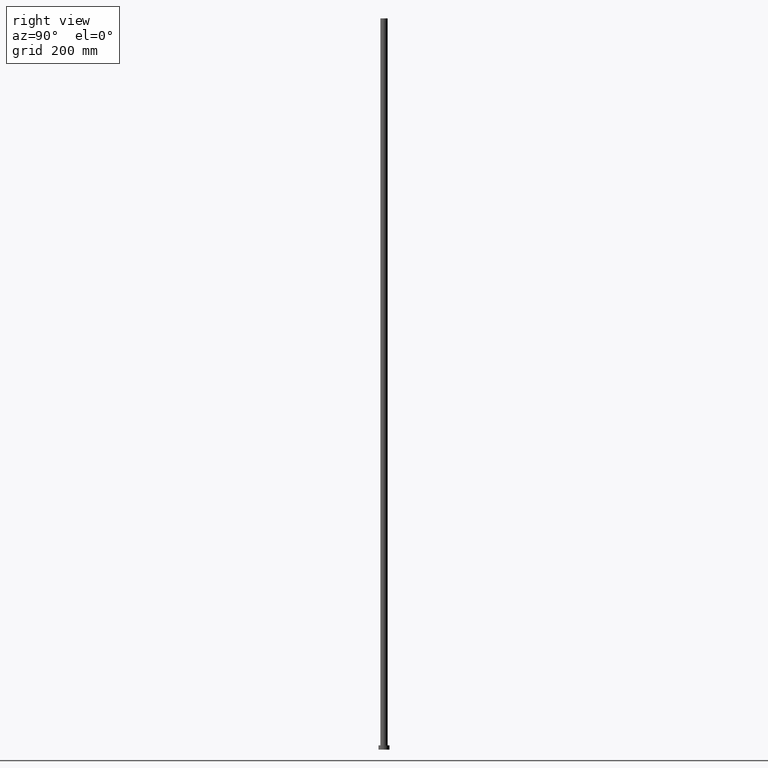
[diagram: clean part render]
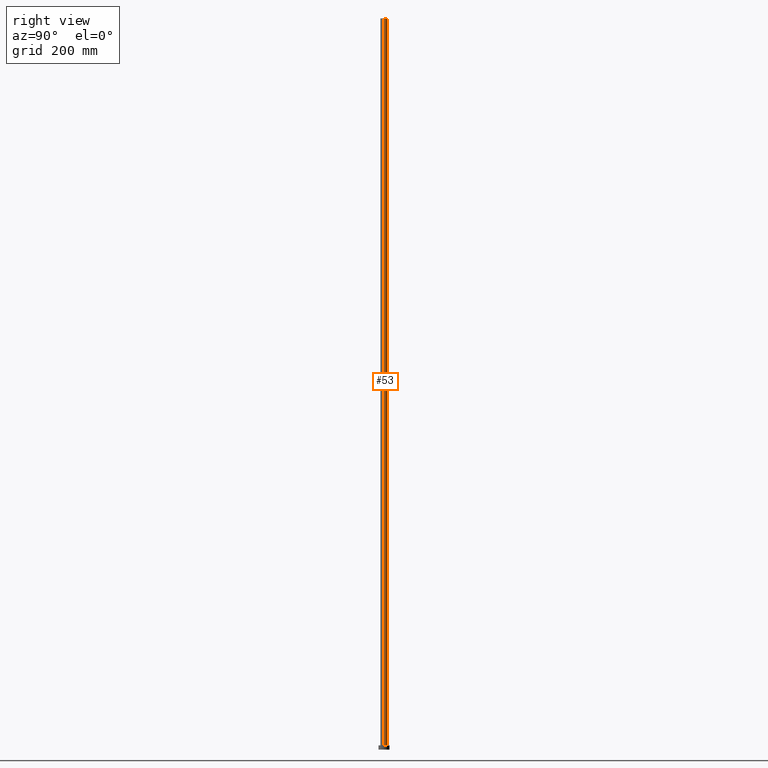
[diagram: same view with one face highlighted and labeled with its STEP entity id]
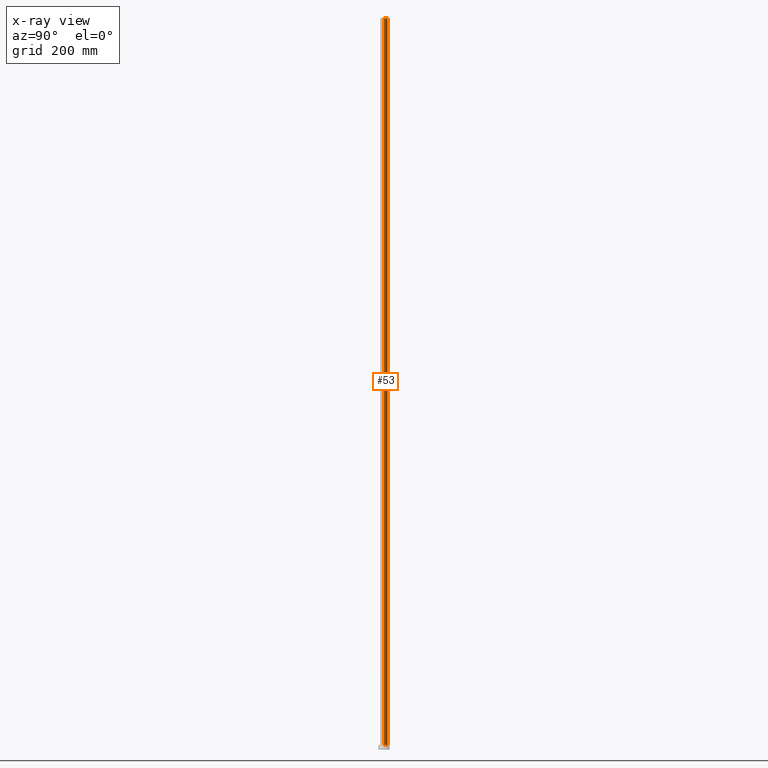
[diagram: x-ray of the same camera — body ghosted, the highlighted face saturated]
A machine part, right view. The second image highlights one B-rep face of the part: STEP entity #53.
The next image is the same camera in x-ray: the body ghosted, the highlighted face saturated — about 0% of this face is hidden behind the body in this view.
In plain terms, the highlighted cylindrical surface (edge-blend (fillet) strip) has radius 6 mm, axis along (-0, -0, -1).
Its self-contained STEP definition (entity closure, byte-faithful):
#1 = DIRECTION ( 'NONE',  ( 1.000000000000000000, 0.000000000000000000, 0.000000000000000000 ) ) ;
#2 = CIRCLE ( 'NONE', #51, 6.000000000000000888 ) ;
#3 = LINE ( 'NONE', #255, #222 ) ;
#8 = EDGE_CURVE ( 'NONE', #34, #202, #127, .T. ) ;
#21 = DIRECTION ( 'NONE',  ( -0.000000000000000000, -0.000000000000000000, -1.000000000000000000 ) ) ;
#23 = ORIENTED_EDGE ( 'NONE', *, *, #149, .T. ) ;
#34 = VERTEX_POINT ( 'NONE', #178 ) ;
#51 = AXIS2_PLACEMENT_3D ( 'NONE', #55, #113, #1 ) ;
#53 = ADVANCED_FACE ( 'NONE', ( #224 ), #179, .T. ) ;
#55 = CARTESIAN_POINT ( 'NONE',  ( 0.000000000000000000, 0.000000000000000000, 1200.000000000000000 ) ) ;
#58 = ORIENTED_EDGE ( 'NONE', *, *, #8, .T. ) ;
#66 = DIRECTION ( 'NONE',  ( -0.000000000000000000, -0.000000000000000000, -1.000000000000000000 ) ) ;
#82 = DIRECTION ( 'NONE',  ( 0.000000000000000000, 0.000000000000000000, 1.000000000000000000 ) ) ;
#83 = VERTEX_POINT ( 'NONE', #151 ) ;
#94 = CARTESIAN_POINT ( 'NONE',  ( 6.000000000000000888, 7.347880794884120722E-16, 1200.000000000000000 ) ) ;
#95 = DIRECTION ( 'NONE',  ( -0.000000000000000000, -0.000000000000000000, -1.000000000000000000 ) ) ;
#101 = VECTOR ( 'NONE', #95, 1000.000000000000000 ) ;
#112 = CARTESIAN_POINT ( 'NONE',  ( -6.000000000000000888, 0.000000000000000000, 7.000000000000000000 ) ) ;
#113 = DIRECTION ( 'NONE',  ( 0.000000000000000000, 0.000000000000000000, 1.000000000000000000 ) ) ;
#125 = CARTESIAN_POINT ( 'NONE',  ( 0.000000000000000000, 0.000000000000000000, 7.000000000000000000 ) ) ;
#127 = CIRCLE ( 'NONE', #136, 6.000000000000000888 ) ;
#133 = DIRECTION ( 'NONE',  ( -1.000000000000000000, 0.000000000000000000, 0.000000000000000000 ) ) ;
#136 = AXIS2_PLACEMENT_3D ( 'NONE', #125, #82, #200 ) ;
#149 = EDGE_CURVE ( 'NONE', #83, #34, #185, .T. ) ;
#151 = CARTESIAN_POINT ( 'NONE',  ( 6.000000000000000888, 7.347880794884120722E-16, 1200.000000000000000 ) ) ;
#153 = ORIENTED_EDGE ( 'NONE', *, *, #184, .F. ) ;
#168 = CARTESIAN_POINT ( 'NONE',  ( 0.000000000000000000, 0.000000000000000000, 1200.000000000000000 ) ) ;
#169 = ORIENTED_EDGE ( 'NONE', *, *, #246, .F. ) ;
#178 = CARTESIAN_POINT ( 'NONE',  ( 6.000000000000000888, 7.347880794884120722E-16, 7.000000000000000000 ) ) ;
#179 = CYLINDRICAL_SURFACE ( 'NONE', #227, 6.000000000000000888 ) ;
#184 = EDGE_CURVE ( 'NONE', #83, #252, #2, .T. ) ;
#185 = LINE ( 'NONE', #94, #101 ) ;
#200 = DIRECTION ( 'NONE',  ( 1.000000000000000000, 0.000000000000000000, 0.000000000000000000 ) ) ;
#202 = VERTEX_POINT ( 'NONE', #112 ) ;
#213 = EDGE_LOOP ( 'NONE', ( #153, #23, #58, #169 ) ) ;
#217 = CARTESIAN_POINT ( 'NONE',  ( -6.000000000000000888, 0.000000000000000000, 1200.000000000000000 ) ) ;
#222 = VECTOR ( 'NONE', #21, 1000.000000000000000 ) ;
#224 = FACE_OUTER_BOUND ( 'NONE', #213, .T. ) ;
#227 = AXIS2_PLACEMENT_3D ( 'NONE', #168, #66, #133 ) ;
#246 = EDGE_CURVE ( 'NONE', #252, #202, #3, .T. ) ;
#252 = VERTEX_POINT ( 'NONE', #217 ) ;
#255 = CARTESIAN_POINT ( 'NONE',  ( -6.000000000000000888, 0.000000000000000000, 1200.000000000000000 ) ) ;